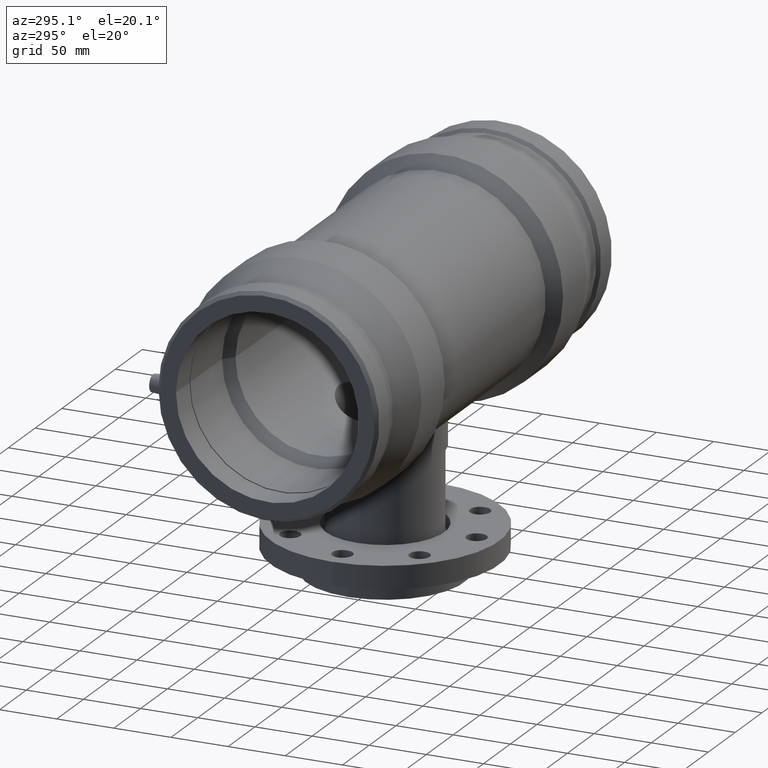
[diagram: clean part render]
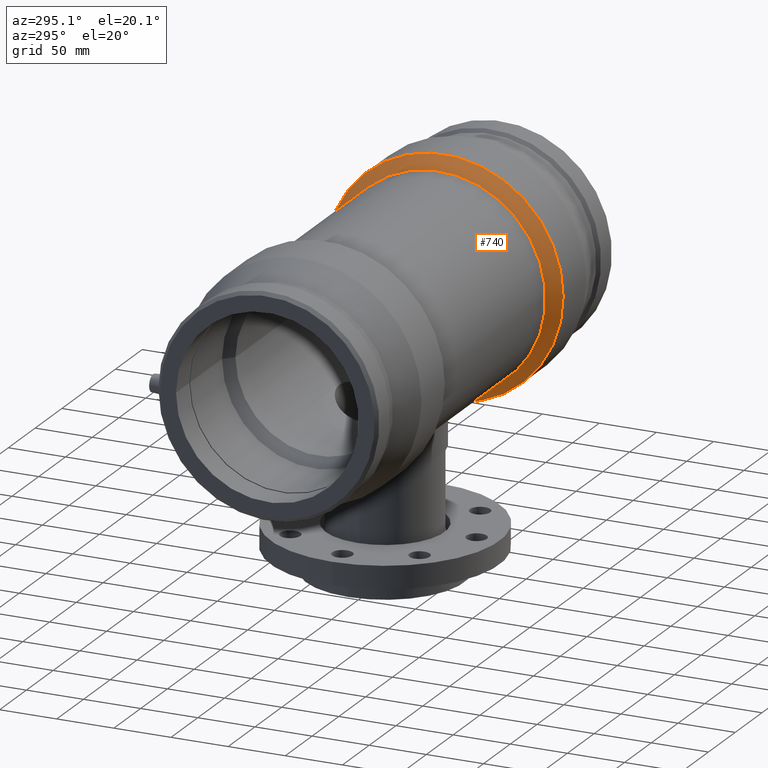
[diagram: same view with one face highlighted and labeled with its STEP entity id]
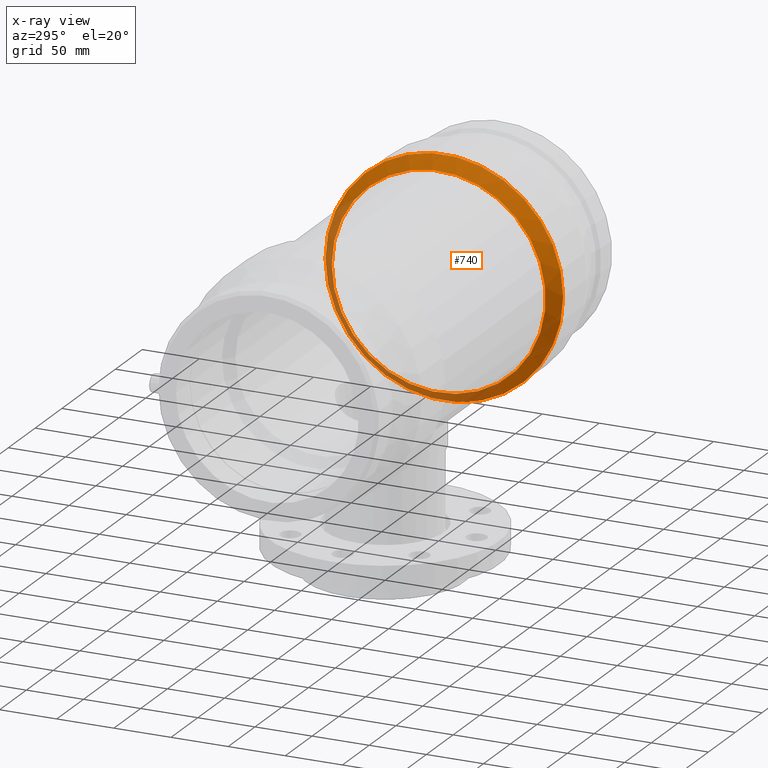
[diagram: x-ray of the same camera — body ghosted, the highlighted face saturated]
A machine part, auxiliary view. The second image highlights one B-rep face of the part: STEP entity #740.
The next image is the same camera in x-ray: the body ghosted, the highlighted face saturated — about 21% of this face is hidden behind the body in this view.
In plain terms, the highlighted conical surface has half-angle 45 deg.
Its self-contained STEP definition (entity closure, byte-faithful):
#22=CONICAL_SURFACE('',#847,98.8,45.);
#100=FACE_BOUND('',#373,.T.);
#147=CIRCLE('',#807,93.6);
#167=CIRCLE('',#848,104.);
#256=FACE_OUTER_BOUND('',#372,.T.);
#372=EDGE_LOOP('',(#658));
#373=EDGE_LOOP('',(#659));
#448=VERTEX_POINT('',#1543);
#470=VERTEX_POINT('',#1674);
#518=EDGE_CURVE('',#448,#448,#147,.T.);
#540=EDGE_CURVE('',#470,#470,#167,.T.);
#658=ORIENTED_EDGE('',*,*,#518,.T.);
#659=ORIENTED_EDGE('',*,*,#540,.F.);
#740=ADVANCED_FACE('',(#256,#100),#22,.T.);
#807=AXIS2_PLACEMENT_3D('',#1544,#979,#980);
#847=AXIS2_PLACEMENT_3D('',#1673,#1059,#1060);
#848=AXIS2_PLACEMENT_3D('',#1675,#1061,#1062);
#979=DIRECTION('center_axis',(1.,0.,0.));
#980=DIRECTION('ref_axis',(0.,0.,-1.));
#1059=DIRECTION('center_axis',(1.,0.,0.));
#1060=DIRECTION('ref_axis',(0.,1.,0.));
#1061=DIRECTION('center_axis',(1.,0.,0.));
#1062=DIRECTION('ref_axis',(0.,0.,-1.));
#1543=CARTESIAN_POINT('',(100.1,93.6,0.));
#1544=CARTESIAN_POINT('Origin',(100.1,0.,0.));
#1673=CARTESIAN_POINT('Origin',(105.3,0.,0.));
#1674=CARTESIAN_POINT('',(110.5,104.,0.));
#1675=CARTESIAN_POINT('Origin',(110.5,0.,0.));